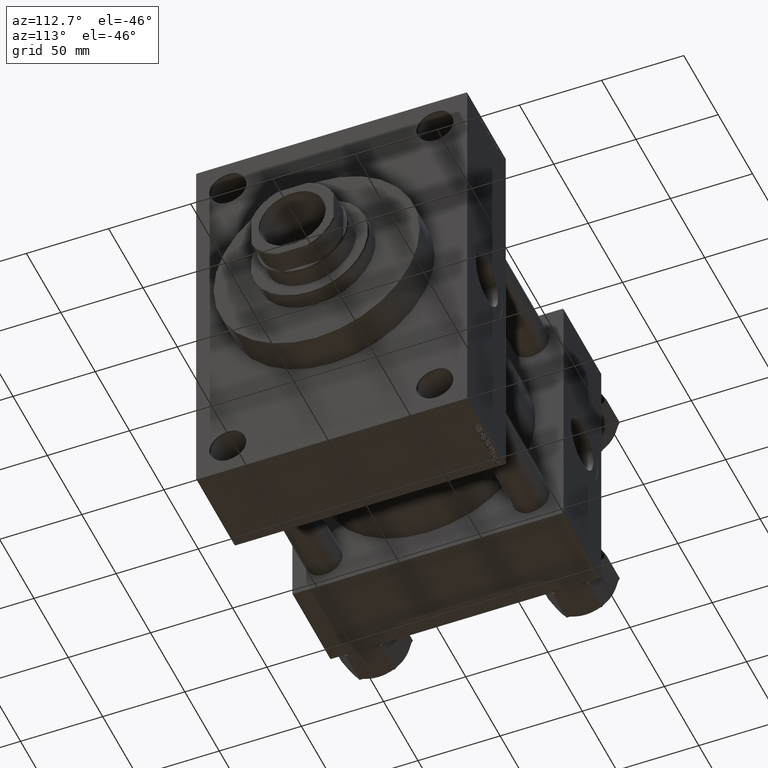
[diagram: clean part render]
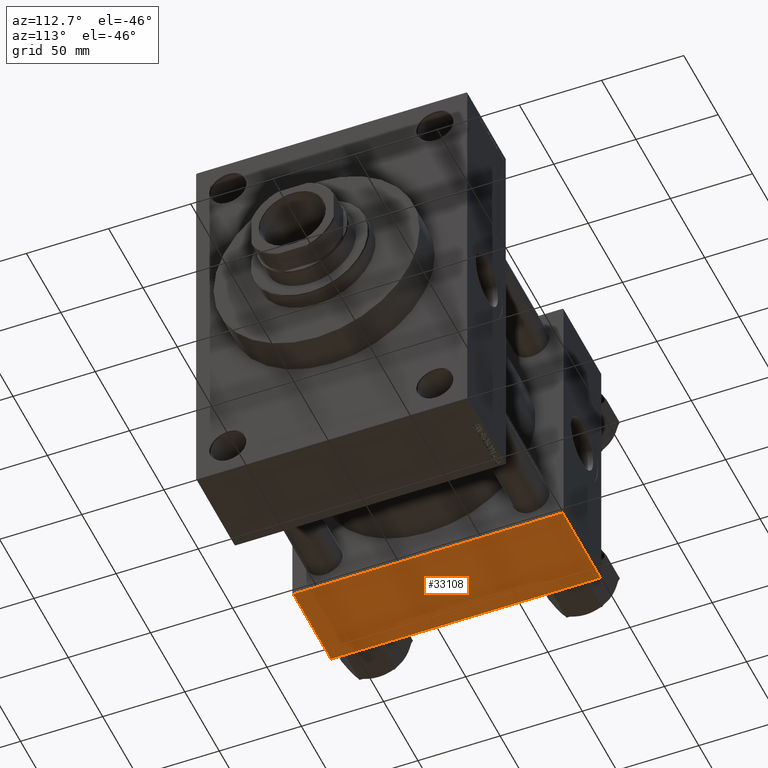
[diagram: same view with one face highlighted and labeled with its STEP entity id]
A machine part, auxiliary view. The second image highlights one B-rep face of the part: STEP entity #33108.
In plain terms, the highlighted planar face has unit normal (0, 0, -1).
Its self-contained STEP definition (entity closure, byte-faithful):
#3179 = EDGE_CURVE ( 'NONE', #41226, #48260, #6009, .T. ) ;
#5088 = DIRECTION ( 'NONE',  ( 0.000000000000000000, -1.000000000000000000, -1.682156097916903588E-16 ) ) ;
#6009 = LINE ( 'NONE', #40763, #20515 ) ;
#6182 = CARTESIAN_POINT ( 'NONE',  ( 55.00000000000000000, -82.00000000000000000, -82.50000000000000000 ) ) ;
#6807 = LINE ( 'NONE', #26302, #11111 ) ;
#7928 = VECTOR ( 'NONE', #5088, 1000.000000000000000 ) ;
#8607 = ORIENTED_EDGE ( 'NONE', *, *, #9562, .F. ) ;
#9562 = EDGE_CURVE ( 'NONE', #41226, #19109, #20835, .T. ) ;
#10179 = CARTESIAN_POINT ( 'NONE',  ( 0.000000000000000000, -82.00000000000000000, -82.50000000000000000 ) ) ;
#10233 = ORIENTED_EDGE ( 'NONE', *, *, #3179, .T. ) ;
#11111 = VECTOR ( 'NONE', #48359, 1000.000000000000000 ) ;
#11663 = ORIENTED_EDGE ( 'NONE', *, *, #34583, .T. ) ;
#17204 = LINE ( 'NONE', #10179, #45487 ) ;
#19109 = VERTEX_POINT ( 'NONE', #45109 ) ;
#20515 = VECTOR ( 'NONE', #21754, 1000.000000000000000 ) ;
#20835 = LINE ( 'NONE', #47849, #7928 ) ;
#21754 = DIRECTION ( 'NONE',  ( 1.000000000000000000, 0.000000000000000000, 0.000000000000000000 ) ) ;
#25443 = DIRECTION ( 'NONE',  ( -1.000000000000000000, 0.000000000000000000, 0.000000000000000000 ) ) ;
#26279 = CARTESIAN_POINT ( 'NONE',  ( 0.000000000000000000, 82.00000000000005684, -82.49999999999997158 ) ) ;
#26302 = CARTESIAN_POINT ( 'NONE',  ( 55.00000000000000000, 82.50000000000002842, -82.49999999999997158 ) ) ;
#28165 = PLANE ( 'NONE',  #45528 ) ;
#33108 = ADVANCED_FACE ( 'NONE', ( #35435 ), #28165, .T. ) ;
#34583 = EDGE_CURVE ( 'NONE', #41821, #19109, #17204, .T. ) ;
#34943 = DIRECTION ( 'NONE',  ( 0.000000000000000000, 1.682156097916903588E-16, -1.000000000000000000 ) ) ;
#35209 = EDGE_CURVE ( 'NONE', #48260, #41821, #6807, .T. ) ;
#35435 = FACE_OUTER_BOUND ( 'NONE', #41957, .T. ) ;
#40763 = CARTESIAN_POINT ( 'NONE',  ( 55.00000000000000000, 82.00000000000005684, -82.49999999999997158 ) ) ;
#41226 = VERTEX_POINT ( 'NONE', #26279 ) ;
#41821 = VERTEX_POINT ( 'NONE', #6182 ) ;
#41957 = EDGE_LOOP ( 'NONE', ( #8607, #10233, #46194, #11663 ) ) ;
#42144 = CARTESIAN_POINT ( 'NONE',  ( 55.00000000000000000, 82.00000000000005684, -82.49999999999997158 ) ) ;
#43452 = DIRECTION ( 'NONE',  ( 0.000000000000000000, 1.000000000000000000, 1.682156097916903588E-16 ) ) ;
#45109 = CARTESIAN_POINT ( 'NONE',  ( 0.000000000000000000, -82.00000000000000000, -82.50000000000000000 ) ) ;
#45487 = VECTOR ( 'NONE', #25443, 1000.000000000000000 ) ;
#45528 = AXIS2_PLACEMENT_3D ( 'NONE', #46467, #34943, #43452 ) ;
#46194 = ORIENTED_EDGE ( 'NONE', *, *, #35209, .T. ) ;
#46467 = CARTESIAN_POINT ( 'NONE',  ( 55.00000000000000000, 82.50000000000002842, -82.49999999999997158 ) ) ;
#47849 = CARTESIAN_POINT ( 'NONE',  ( 0.000000000000000000, 82.50000000000002842, -82.49999999999997158 ) ) ;
#48260 = VERTEX_POINT ( 'NONE', #42144 ) ;
#48359 = DIRECTION ( 'NONE',  ( 0.000000000000000000, -1.000000000000000000, -1.682156097916903588E-16 ) ) ;